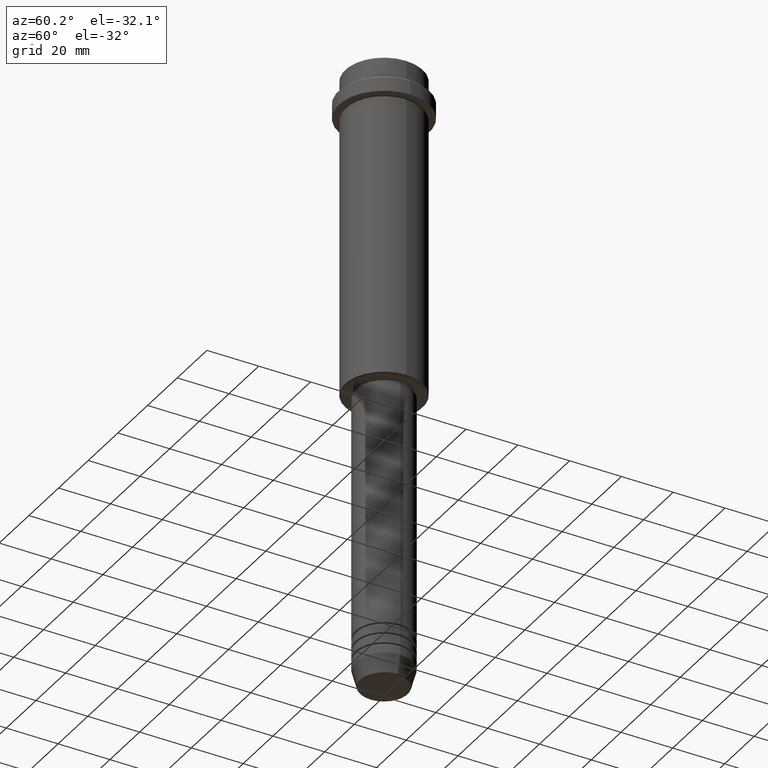
[diagram: clean part render]
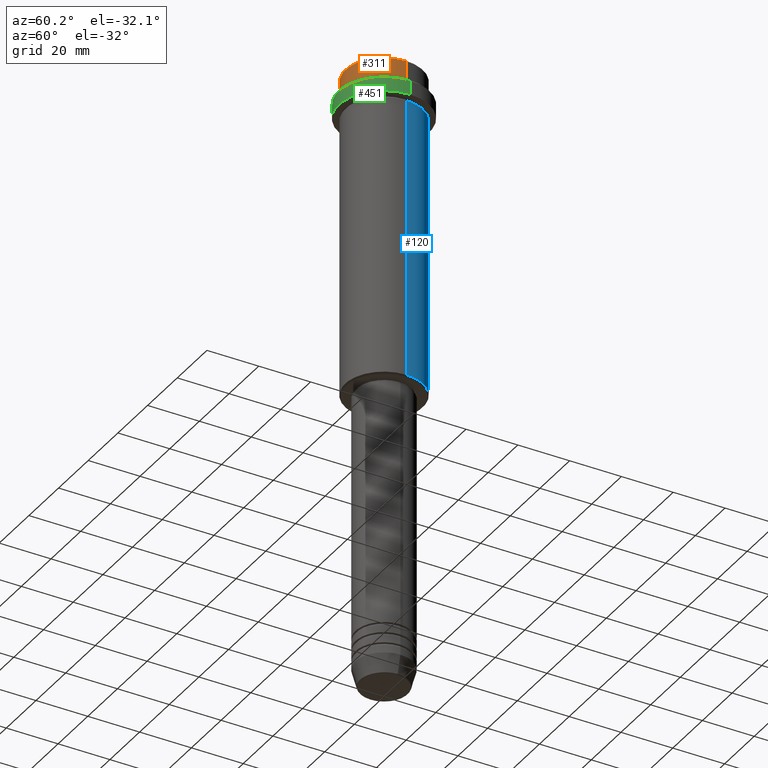
[diagram: same view with three faces highlighted in distinct colors, each labeled with its STEP entity id]
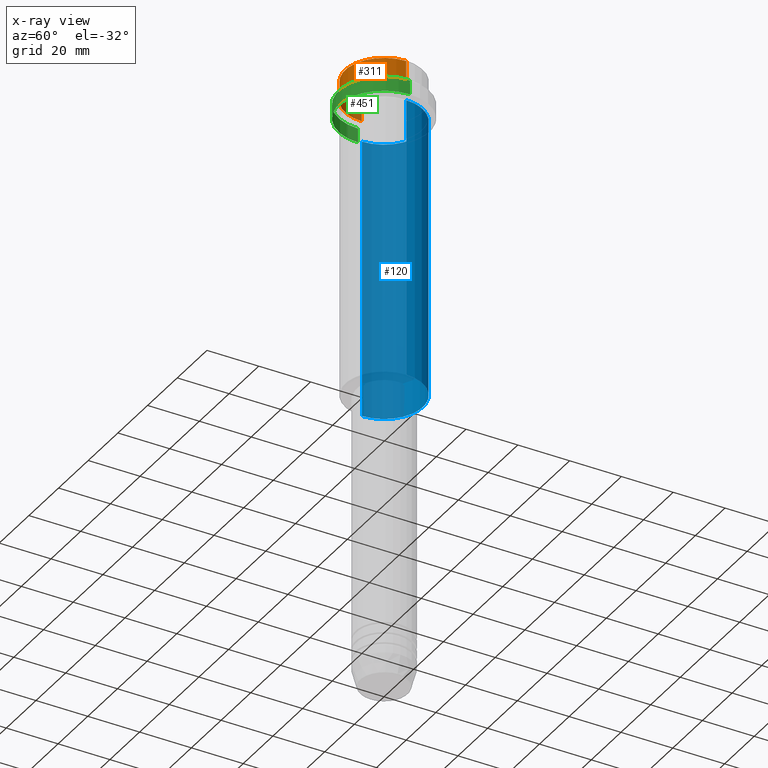
[diagram: x-ray of the same camera — body ghosted, the three highlighted faces saturated]
A machine part, auxiliary view with three faces highlighted in distinct colors.
The next image is the same camera in x-ray (body ghosted, the three faces saturated) — at least one of them is partly hidden behind the body in this view.
Their STEP definitions:

[orange] entity #311 — the highlighted cylindrical surface (partial cylindrical patch) has radius 15 mm, axis along (-0, -0, 1).
#21 = ORIENTED_EDGE ( 'NONE', *, *, #986, .T. ) ;
#62 = CYLINDRICAL_SURFACE ( 'NONE', #848, 15.00000000000000000 ) ;
#90 = DIRECTION ( 'NONE',  ( -0.000000000000000000, -0.000000000000000000, 1.000000000000000000 ) ) ;
#94 = DIRECTION ( 'NONE',  ( 0.000000000000000000, 0.000000000000000000, -1.000000000000000000 ) ) ;
#109 = EDGE_CURVE ( 'NONE', #838, #869, #740, .T. ) ;
#199 = DIRECTION ( 'NONE',  ( -0.000000000000000000, -0.000000000000000000, 1.000000000000000000 ) ) ;
#285 = CIRCLE ( 'NONE', #533, 15.00000000000000000 ) ;
#311 = ADVANCED_FACE ( 'NONE', ( #828 ), #62, .T. ) ;
#332 = CARTESIAN_POINT ( 'NONE',  ( -15.00000000000000000, 1.836970198721029589E-15, 0.000000000000000000 ) ) ;
#347 = CARTESIAN_POINT ( 'NONE',  ( 0.000000000000000000, 0.000000000000000000, -7.999999999999998224 ) ) ;
#401 = ORIENTED_EDGE ( 'NONE', *, *, #936, .T. ) ;
#419 = VERTEX_POINT ( 'NONE', #849 ) ;
#425 = CARTESIAN_POINT ( 'NONE',  ( 15.00000000000000000, 0.000000000000000000, -7.999999999999998224 ) ) ;
#491 = DIRECTION ( 'NONE',  ( -0.000000000000000000, -0.000000000000000000, 1.000000000000000000 ) ) ;
#518 = CARTESIAN_POINT ( 'NONE',  ( -15.00000000000000000, 1.836970198721029589E-15, -7.999999999999998224 ) ) ;
#533 = AXIS2_PLACEMENT_3D ( 'NONE', #1076, #94, #549 ) ;
#549 = DIRECTION ( 'NONE',  ( 1.000000000000000000, 0.000000000000000000, 0.000000000000000000 ) ) ;
#558 = VERTEX_POINT ( 'NONE', #425 ) ;
#597 = ORIENTED_EDGE ( 'NONE', *, *, #929, .T. ) ;
#689 = VECTOR ( 'NONE', #90, 1000.000000000000000 ) ;
#740 = LINE ( 'NONE', #332, #689 ) ;
#828 = FACE_OUTER_BOUND ( 'NONE', #1164, .T. ) ;
#838 = VERTEX_POINT ( 'NONE', #518 ) ;
#846 = CARTESIAN_POINT ( 'NONE',  ( -15.00000000000000000, 1.836970198721029589E-15, -0.4999999999999831246 ) ) ;
#848 = AXIS2_PLACEMENT_3D ( 'NONE', #1274, #491, #1160 ) ;
#849 = CARTESIAN_POINT ( 'NONE',  ( 15.00000000000000000, 0.000000000000000000, -0.4999999999999831246 ) ) ;
#869 = VERTEX_POINT ( 'NONE', #846 ) ;
#888 = DIRECTION ( 'NONE',  ( -0.000000000000000000, -0.000000000000000000, 1.000000000000000000 ) ) ;
#929 = EDGE_CURVE ( 'NONE', #558, #419, #1178, .T. ) ;
#936 = EDGE_CURVE ( 'NONE', #419, #869, #285, .T. ) ;
#951 = CIRCLE ( 'NONE', #1024, 15.00000000000000000 ) ;
#986 = EDGE_CURVE ( 'NONE', #838, #558, #951, .T. ) ;
#1024 = AXIS2_PLACEMENT_3D ( 'NONE', #347, #888, #1316 ) ;
#1042 = ORIENTED_EDGE ( 'NONE', *, *, #109, .F. ) ;
#1076 = CARTESIAN_POINT ( 'NONE',  ( 0.000000000000000000, 0.000000000000000000, -0.4999999999999831246 ) ) ;
#1160 = DIRECTION ( 'NONE',  ( 1.000000000000000000, 0.000000000000000000, 0.000000000000000000 ) ) ;
#1164 = EDGE_LOOP ( 'NONE', ( #1042, #21, #597, #401 ) ) ;
#1178 = LINE ( 'NONE', #1287, #1375 ) ;
#1274 = CARTESIAN_POINT ( 'NONE',  ( 0.000000000000000000, 0.000000000000000000, 0.000000000000000000 ) ) ;
#1287 = CARTESIAN_POINT ( 'NONE',  ( 15.00000000000000000, 0.000000000000000000, 0.000000000000000000 ) ) ;
#1316 = DIRECTION ( 'NONE',  ( 1.000000000000000000, 0.000000000000000000, 0.000000000000000000 ) ) ;
#1375 = VECTOR ( 'NONE', #199, 1000.000000000000000 ) ;

[blue] entity #120 — the highlighted cylindrical surface (partial cylindrical patch) has radius 15 mm, axis along (-0, -0, 1).
#120 = ADVANCED_FACE ( 'NONE', ( #453 ), #771, .T. ) ;
#127 = DIRECTION ( 'NONE',  ( -0.000000000000000000, -0.000000000000000000, 1.000000000000000000 ) ) ;
#148 = AXIS2_PLACEMENT_3D ( 'NONE', #537, #1399, #753 ) ;
#154 = CARTESIAN_POINT ( 'NONE',  ( 15.00000000000000000, 0.000000000000000000, -124.4999999999999432 ) ) ;
#249 = EDGE_CURVE ( 'NONE', #636, #1188, #1032, .T. ) ;
#323 = CIRCLE ( 'NONE', #148, 15.00000000000000000 ) ;
#340 = CARTESIAN_POINT ( 'NONE',  ( -15.00000000000000000, 1.836970198721029589E-15, -124.4999999999999432 ) ) ;
#348 = ORIENTED_EDGE ( 'NONE', *, *, #249, .F. ) ;
#368 = CARTESIAN_POINT ( 'NONE',  ( 15.00000000000000000, 0.000000000000000000, 0.000000000000000000 ) ) ;
#372 = VECTOR ( 'NONE', #373, 1000.000000000000000 ) ;
#373 = DIRECTION ( 'NONE',  ( -0.000000000000000000, -0.000000000000000000, 1.000000000000000000 ) ) ;
#376 = DIRECTION ( 'NONE',  ( -0.000000000000000000, -0.000000000000000000, 1.000000000000000000 ) ) ;
#397 = ORIENTED_EDGE ( 'NONE', *, *, #437, .T. ) ;
#437 = EDGE_CURVE ( 'NONE', #636, #1067, #323, .T. ) ;
#453 = FACE_OUTER_BOUND ( 'NONE', #1364, .T. ) ;
#530 = VECTOR ( 'NONE', #898, 1000.000000000000000 ) ;
#536 = VERTEX_POINT ( 'NONE', #762 ) ;
#537 = CARTESIAN_POINT ( 'NONE',  ( 0.000000000000000000, 0.000000000000000000, -124.4999999999999432 ) ) ;
#636 = VERTEX_POINT ( 'NONE', #154 ) ;
#665 = CARTESIAN_POINT ( 'NONE',  ( 0.000000000000000000, 0.000000000000000000, 0.000000000000000000 ) ) ;
#753 = DIRECTION ( 'NONE',  ( -1.000000000000000000, 0.000000000000000000, 0.000000000000000000 ) ) ;
#754 = EDGE_CURVE ( 'NONE', #1188, #536, #1330, .T. ) ;
#762 = CARTESIAN_POINT ( 'NONE',  ( -15.00000000000000355, 1.836970198721029983E-15, -16.00000000000000000 ) ) ;
#769 = ORIENTED_EDGE ( 'NONE', *, *, #1081, .T. ) ;
#771 = CYLINDRICAL_SURFACE ( 'NONE', #1393, 15.00000000000000000 ) ;
#775 = CARTESIAN_POINT ( 'NONE',  ( -15.00000000000000000, 1.836970198721029589E-15, 0.000000000000000000 ) ) ;
#898 = DIRECTION ( 'NONE',  ( -0.000000000000000000, -0.000000000000000000, 1.000000000000000000 ) ) ;
#920 = LINE ( 'NONE', #775, #372 ) ;
#965 = CARTESIAN_POINT ( 'NONE',  ( 15.00000000000000178, 0.000000000000000000, -16.00000000000000000 ) ) ;
#984 = ORIENTED_EDGE ( 'NONE', *, *, #754, .F. ) ;
#1032 = LINE ( 'NONE', #368, #530 ) ;
#1034 = DIRECTION ( 'NONE',  ( 1.000000000000000000, 0.000000000000000000, 0.000000000000000000 ) ) ;
#1067 = VERTEX_POINT ( 'NONE', #340 ) ;
#1081 = EDGE_CURVE ( 'NONE', #1067, #536, #920, .T. ) ;
#1171 = AXIS2_PLACEMENT_3D ( 'NONE', #1243, #376, #1034 ) ;
#1188 = VERTEX_POINT ( 'NONE', #965 ) ;
#1243 = CARTESIAN_POINT ( 'NONE',  ( 0.000000000000000000, 0.000000000000000000, -16.00000000000000000 ) ) ;
#1283 = DIRECTION ( 'NONE',  ( 1.000000000000000000, 0.000000000000000000, 0.000000000000000000 ) ) ;
#1330 = CIRCLE ( 'NONE', #1171, 15.00000000000000178 ) ;
#1364 = EDGE_LOOP ( 'NONE', ( #397, #769, #984, #348 ) ) ;
#1393 = AXIS2_PLACEMENT_3D ( 'NONE', #665, #127, #1283 ) ;
#1399 = DIRECTION ( 'NONE',  ( -0.000000000000000000, -0.000000000000000000, 1.000000000000000000 ) ) ;

[green] entity #451 — the highlighted cylindrical surface (partial cylindrical patch) has radius 17.5 mm, axis along (-0, -0, 1).
#11 = CARTESIAN_POINT ( 'NONE',  ( -17.50000000000000000, 2.143131898507868248E-15, 0.000000000000000000 ) ) ;
#23 = VERTEX_POINT ( 'NONE', #215 ) ;
#91 = CARTESIAN_POINT ( 'NONE',  ( -17.50000000000000000, 2.143131898507868248E-15, -9.499999999999971578 ) ) ;
#97 = ORIENTED_EDGE ( 'NONE', *, *, #1167, .T. ) ;
#106 = DIRECTION ( 'NONE',  ( -0.000000000000000000, -0.000000000000000000, 1.000000000000000000 ) ) ;
#128 = VECTOR ( 'NONE', #733, 1000.000000000000000 ) ;
#150 = CARTESIAN_POINT ( 'NONE',  ( 0.000000000000000000, 0.000000000000000000, -15.00000000000000000 ) ) ;
#200 = CARTESIAN_POINT ( 'NONE',  ( 0.000000000000000000, 0.000000000000000000, 0.000000000000000000 ) ) ;
#215 = CARTESIAN_POINT ( 'NONE',  ( -17.50000000000000000, 2.143131898507868248E-15, -15.00000000000000000 ) ) ;
#226 = VERTEX_POINT ( 'NONE', #585 ) ;
#233 = EDGE_CURVE ( 'NONE', #23, #342, #801, .T. ) ;
#274 = DIRECTION ( 'NONE',  ( 0.000000000000000000, 0.000000000000000000, -1.000000000000000000 ) ) ;
#287 = CIRCLE ( 'NONE', #830, 17.50000000000000000 ) ;
#302 = AXIS2_PLACEMENT_3D ( 'NONE', #200, #106, #1312 ) ;
#342 = VERTEX_POINT ( 'NONE', #1050 ) ;
#451 = ADVANCED_FACE ( 'NONE', ( #657 ), #1079, .T. ) ;
#475 = DIRECTION ( 'NONE',  ( -0.000000000000000000, -0.000000000000000000, 1.000000000000000000 ) ) ;
#505 = LINE ( 'NONE', #1381, #128 ) ;
#543 = ORIENTED_EDGE ( 'NONE', *, *, #233, .T. ) ;
#585 = CARTESIAN_POINT ( 'NONE',  ( 17.50000000000000000, 0.000000000000000000, -9.499999999999971578 ) ) ;
#622 = AXIS2_PLACEMENT_3D ( 'NONE', #150, #475, #1341 ) ;
#657 = FACE_OUTER_BOUND ( 'NONE', #1235, .T. ) ;
#729 = ORIENTED_EDGE ( 'NONE', *, *, #1315, .F. ) ;
#733 = DIRECTION ( 'NONE',  ( -0.000000000000000000, -0.000000000000000000, 1.000000000000000000 ) ) ;
#748 = DIRECTION ( 'NONE',  ( -0.000000000000000000, -0.000000000000000000, 1.000000000000000000 ) ) ;
#801 = CIRCLE ( 'NONE', #622, 17.50000000000000000 ) ;
#806 = VECTOR ( 'NONE', #748, 1000.000000000000000 ) ;
#816 = CARTESIAN_POINT ( 'NONE',  ( 0.000000000000000000, 0.000000000000000000, -9.499999999999971578 ) ) ;
#830 = AXIS2_PLACEMENT_3D ( 'NONE', #816, #274, #1101 ) ;
#1050 = CARTESIAN_POINT ( 'NONE',  ( 17.50000000000000000, 0.000000000000000000, -15.00000000000000000 ) ) ;
#1079 = CYLINDRICAL_SURFACE ( 'NONE', #302, 17.50000000000000000 ) ;
#1101 = DIRECTION ( 'NONE',  ( 1.000000000000000000, 0.000000000000000000, 0.000000000000000000 ) ) ;
#1130 = EDGE_CURVE ( 'NONE', #226, #1343, #287, .T. ) ;
#1158 = ORIENTED_EDGE ( 'NONE', *, *, #1130, .T. ) ;
#1167 = EDGE_CURVE ( 'NONE', #342, #226, #505, .T. ) ;
#1235 = EDGE_LOOP ( 'NONE', ( #729, #543, #97, #1158 ) ) ;
#1312 = DIRECTION ( 'NONE',  ( 1.000000000000000000, 0.000000000000000000, 0.000000000000000000 ) ) ;
#1314 = LINE ( 'NONE', #11, #806 ) ;
#1315 = EDGE_CURVE ( 'NONE', #23, #1343, #1314, .T. ) ;
#1341 = DIRECTION ( 'NONE',  ( 1.000000000000000000, 0.000000000000000000, 0.000000000000000000 ) ) ;
#1343 = VERTEX_POINT ( 'NONE', #91 ) ;
#1381 = CARTESIAN_POINT ( 'NONE',  ( 17.50000000000000000, 0.000000000000000000, 0.000000000000000000 ) ) ;